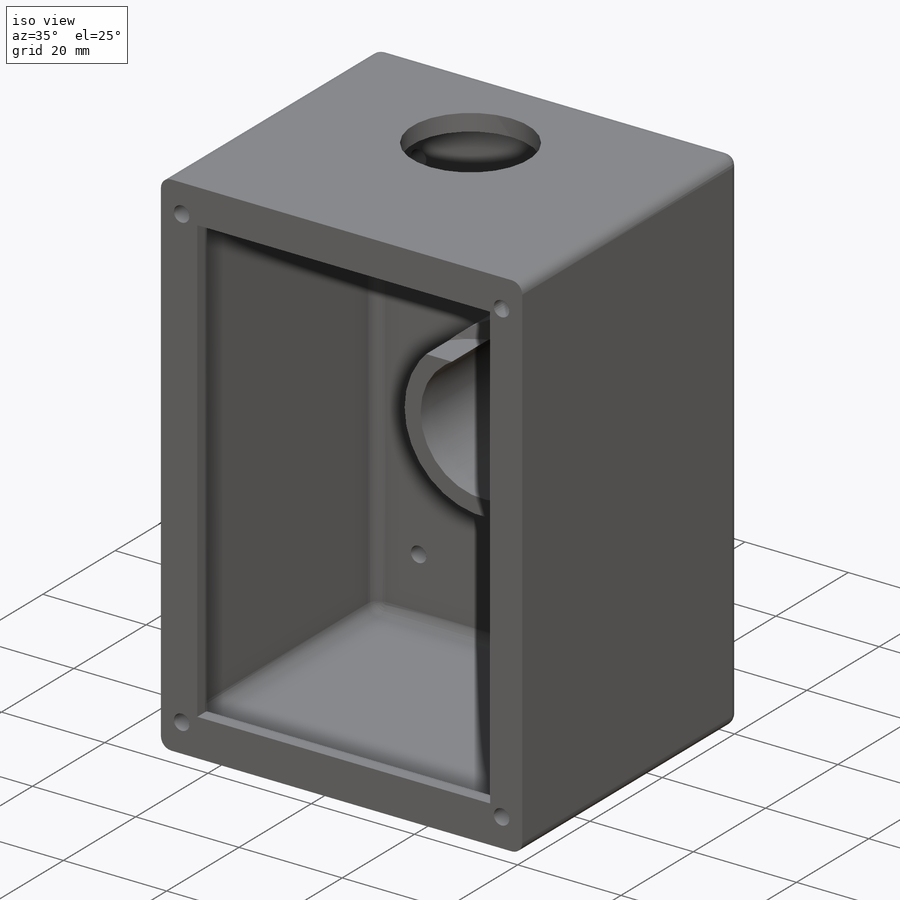
[diagram: iso view]
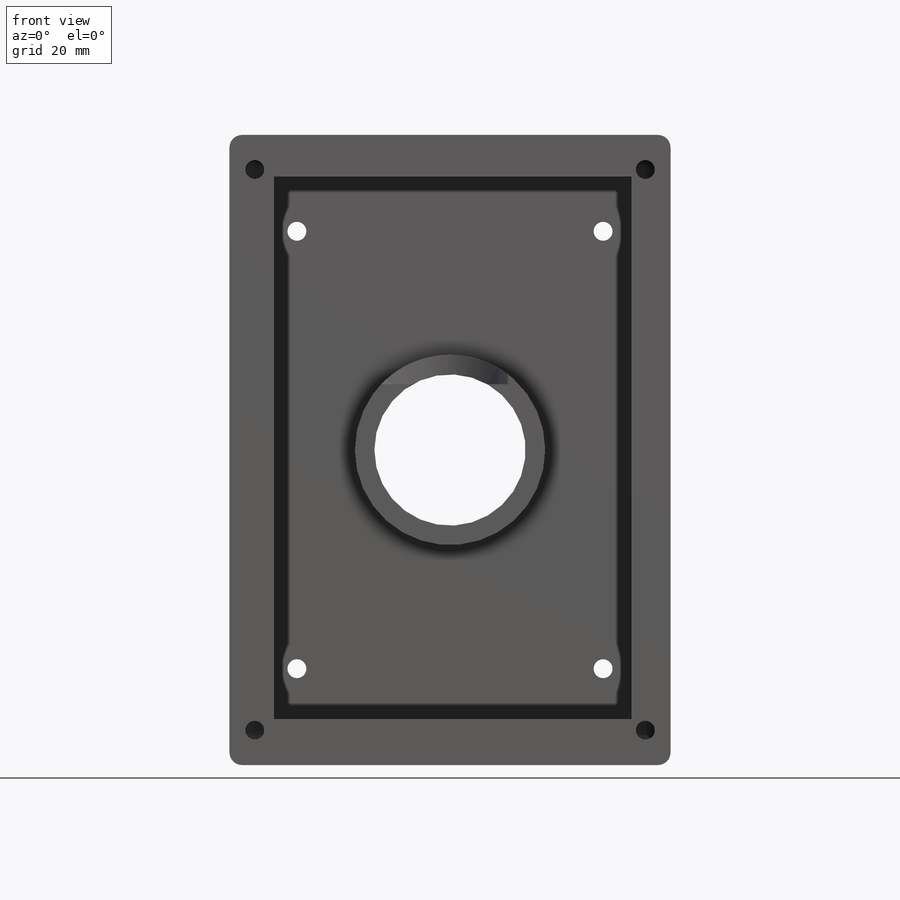
[diagram: front view]
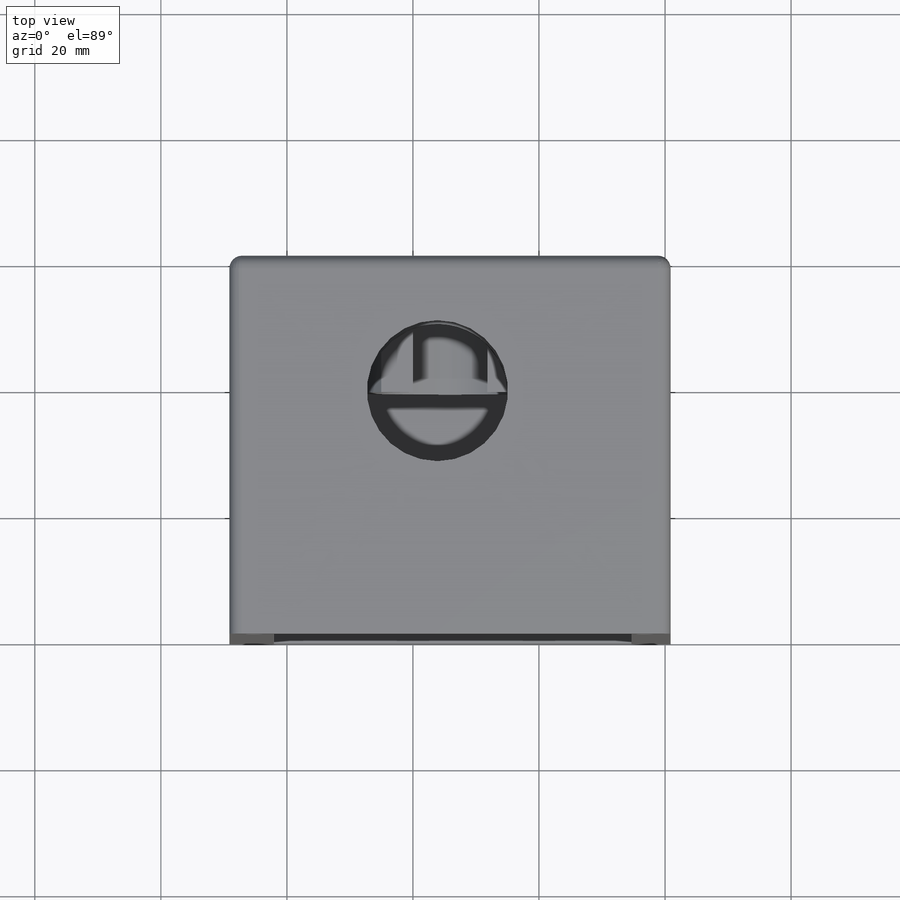
[diagram: top view]
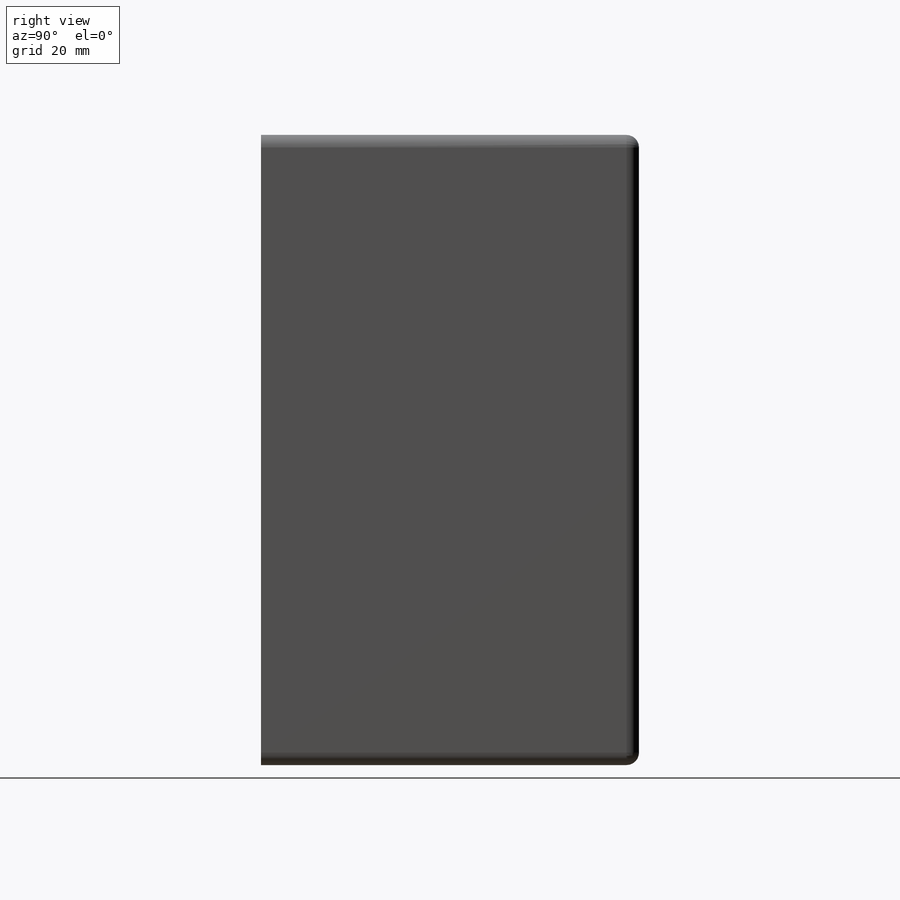
[diagram: right view]
SOLIDWORKS PART (.sldprt)
format: sldprt  version: not decoded by parser v0  size: 644,096 bytes
history: native  units: mm
features: fillet x8, sketch x7, extrude x4, plane x3, cut_extrude x3, material x1 (+10 scaffold rows collapsed)
feature tree (36):
  scaffold x10  (default folders/planes/origin — collapsed)
  material  "Material <não especificado>"
  plane  "Plano frontal"
  plane  "Plano superior"
  plane  "Plano direito"
  sketch  "Esboço1"  dims[D3=24.0mm D1=70.0mm D2=100.0mm]
  extrude  "Ressalto-extrusão1"  Depth=4mm
  sketch  "Esboço2"
  extrude  "Ressalto-extrusão2"  Depth=21mm
  sketch  "Esboço3"  dims[D1=4.0mm D2=4.0mm]
  extrude  "Ressalto-extrusão3"  Depth=60mm
  fillet  "Filete1"  Radius=2mm
  fillet  "Filete2"  Radius=2mm
  fillet  "Filete3"  Radius=2mm
  fillet  "Filete4"  Radius=2mm
  fillet  "Filete5"  Radius=2mm
  sketch  "Esboço4"  dims[D1=3.0mm D2=3.0mm D3=3.0mm D4=3.0mm D5=6.0mm]
  cut_extrude  "Corte-extrusão1"  Depth=17mm
  fillet  "Filete6"  Radius=2mm
  fillet  "Filete7"  Radius=2mm
  sketch  "3DSketch1"
  extrude  "Ressalto-extrusão4"  Depth=4mm
  sketch  "Esboço5"  dims[D3=3.0mm D4=3.0mm D5=3.0mm D8=3.0mm D1=6.0mm D2=6.0mm D6=6.0mm D7=6.0mm]
  cut_extrude  "Corte-extrusão2"  Depth=14mm
  fillet  "Filete8"  Radius=2mm
  sketch  "Esboço6"  dims[D1=~11.442013mm D2=35.0mm]
  cut_extrude  "Corte-extrusão10"  Depth=22mm
decode coverage: 20 of 22 modeling features carry decoded parameters
note: ~ marks probable driven/reference dimensions
note: suppression state not decoded; provenance and decode notes live in map.json
